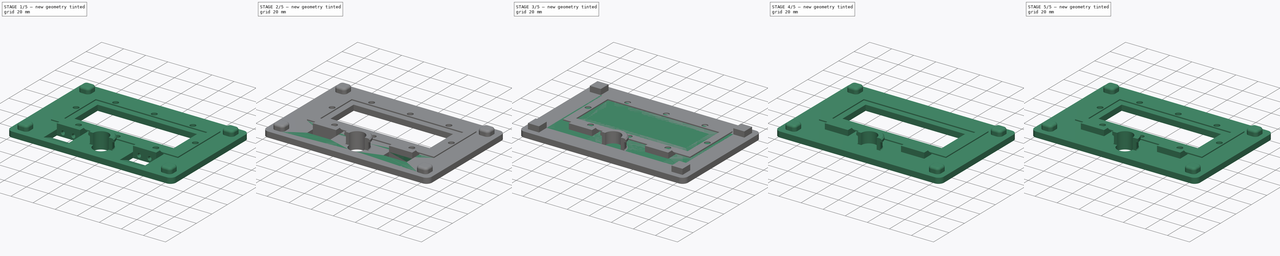
[diagram: build sequence overview — one tinted view per stage of 5, left to right]
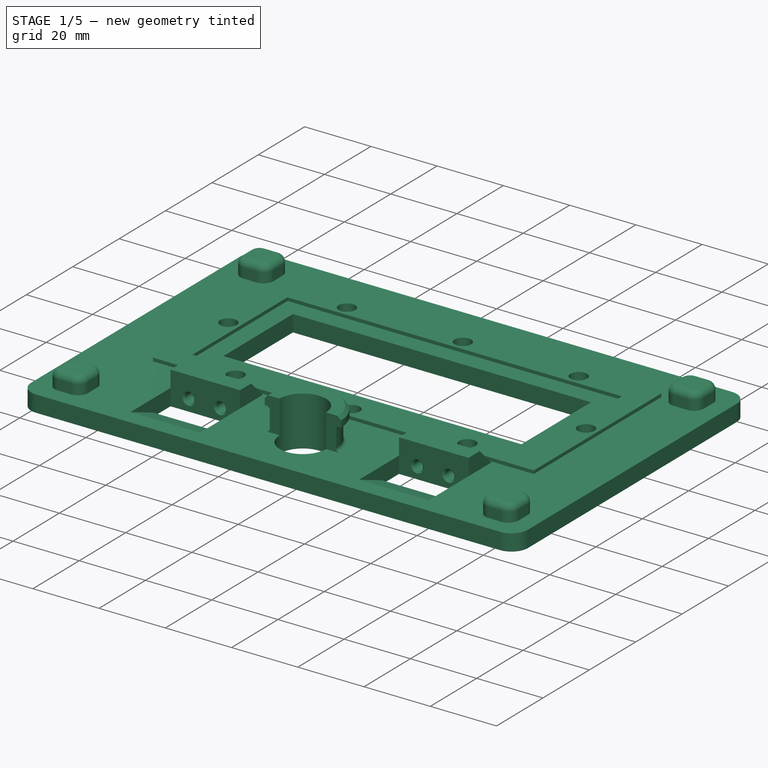
[diagram: stage 1 of 5 — iso view after this stage's code; geometry added in this stage tinted green]
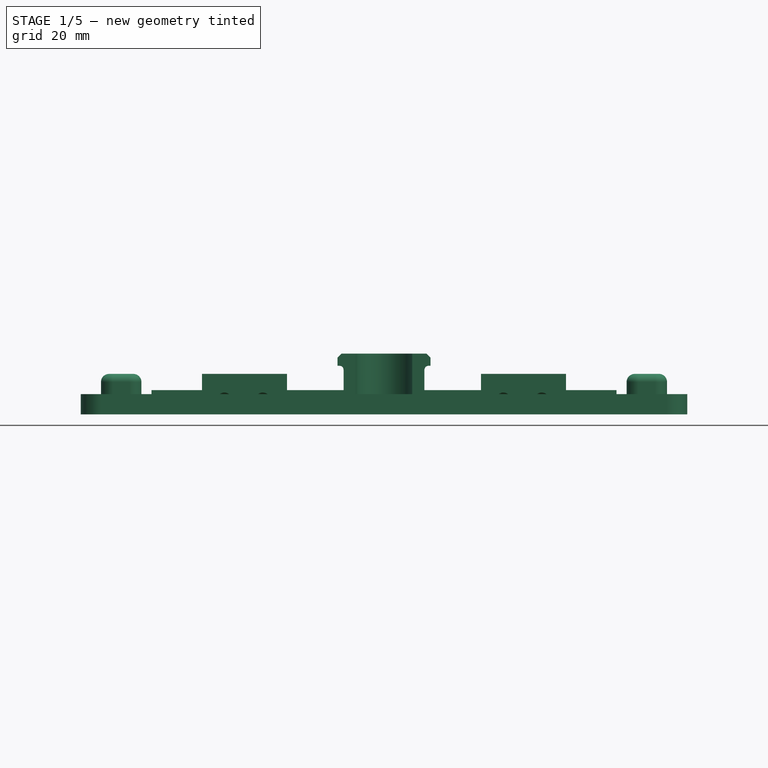
[diagram: stage 1 of 5 — front view after this stage's code; geometry added in this stage tinted green]
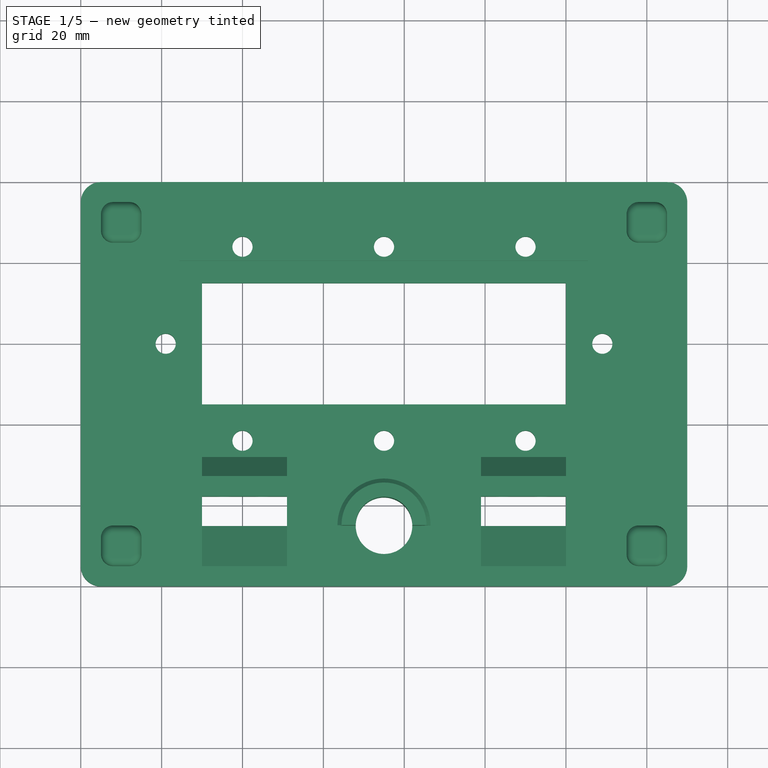
[diagram: stage 1 of 5 — top view after this stage's code; geometry added in this stage tinted green]
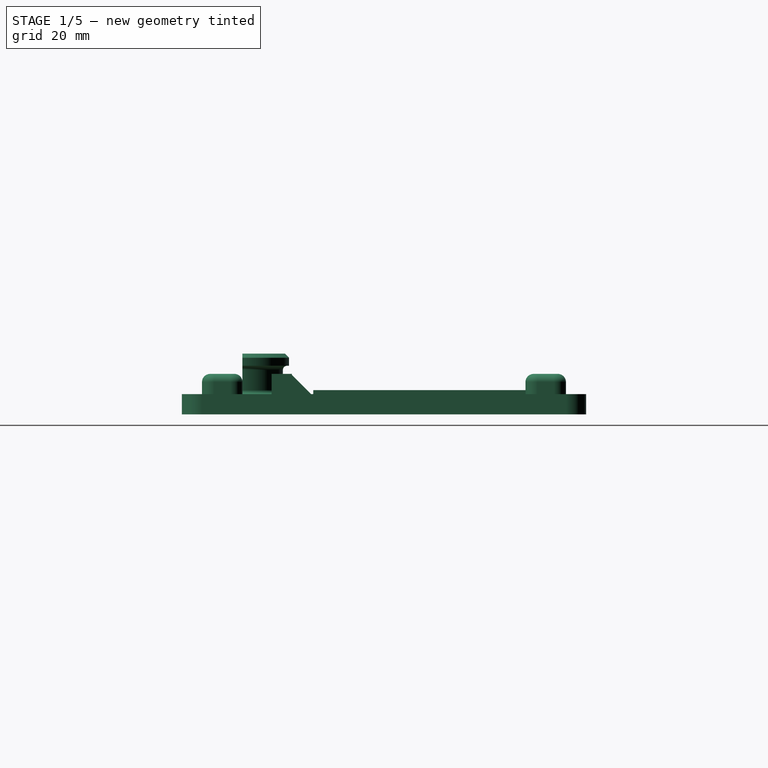
[diagram: stage 1 of 5 — right view after this stage's code; geometry added in this stage tinted green]
FCSTD DOCUMENT  (FreeCAD 0.16R6655 (Git))
Label: taz_x_axis_external_harness
License: CC-BY 3.0
LicenseURL: http://creativecommons.org/licenses/by/3.0/
objects: Sketcher::SketchObject×11, PartDesign::Pad×6, PartDesign::Pocket×5, PartDesign::Fillet×4, PartDesign::Chamfer×3, Part::Feature×2, Part::Chamfer×1
note: 43 computed .brp shape members not serialized (recipe doc carries the construction recipe); baked Part::Feature solids carry a one-line shape summary decoded from their .brp

FEATURE [Part::Feature] Pad004002001  label="Pad004003"
  shape: bbox 150 x 100 x 15.01 mm, 128 faces (baked)
FEATURE [Part::Chamfer] Chamfer001
  Base = -> Pad004002001
  Edges = 2 edges: [Edge48 r1=10 r2=4,Edge66 r1=10 r2=4]
FEATURE [Sketcher::SketchObject] Sketch010
  ExternalGeometry = -> [Chamfer001]
  Placement = pos=(0,22.2,0) rot=(1,0,0;1.5708rad)
  Support = -> Chamfer001 [Face64]
  sketch-geometry (4):
    g0: Circle CenterX=104.5 CenterY=3.5 CenterZ=0 NormalX=0 NormalY=0 NormalZ=1 Radius=1.4
    g1: Circle CenterX=114 CenterY=3.5 CenterZ=0 NormalX=0 NormalY=0 NormalZ=1 Radius=1.4
    g2: Circle CenterX=35.5 CenterY=3.5 CenterZ=0 NormalX=0 NormalY=0 NormalZ=1 Radius=1.4
    g3: Circle CenterX=45 CenterY=3.5 CenterZ=0 NormalX=0 NormalY=0 NormalZ=1 Radius=1.4
  constraints (12):
    c: Radius(g0) = 1.4
    c: Equal(g0,g1)
    c: Equal(g0,g2)
    c: Equal(g0,g3)
    c: DistanceY(g3,g2) = 0
    c: DistanceY(g0,g1) = 0
    c: DistanceY(g0,g3) = 0
    c: DistanceY(g-1,g2) = 3.5
    c: DistanceX(g2,g3) = 9.5
    c: DistanceX(g0,g1) = 9.5
    c: DistanceX(g-3,g2) = 5.5
    c: DistanceX(g-4,g0) = 5.5
FEATURE [PartDesign::Pocket] Pocket004
  Length = 3.7
  Sketch = -> Sketch010
  Type = 0
FEATURE [PartDesign::Chamfer] Chamfer002
  Base = -> Pocket004 [Edge6,Edge62]
  Size = 4.8
FEATURE [PartDesign::Chamfer] Chamfer003
  Base = -> Chamfer002 [Edge319,Edge320,Edge211,Edge212]
  Size = 0.5
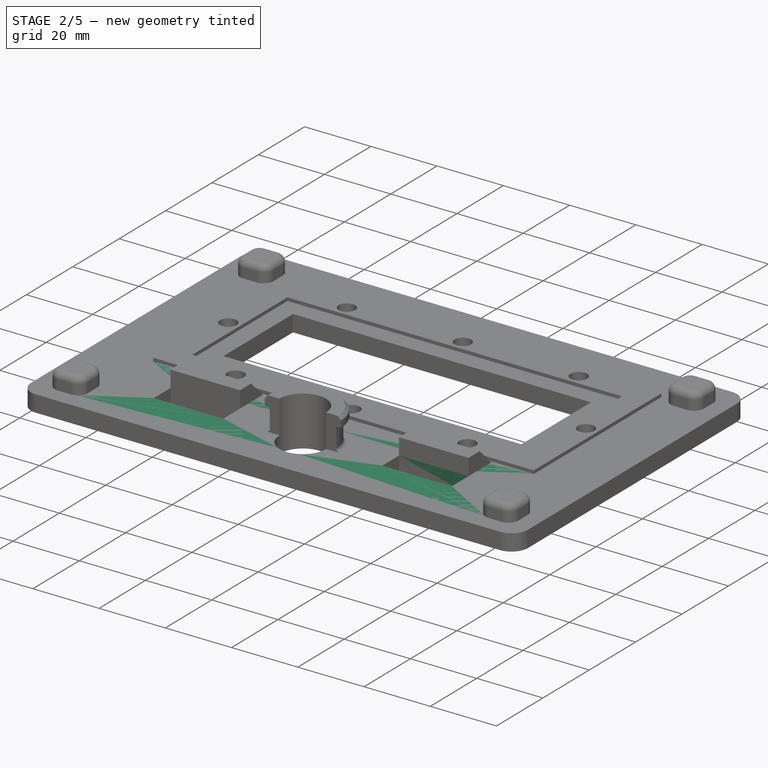
[diagram: stage 2 of 5 — iso view after this stage's code; geometry added in this stage tinted green]
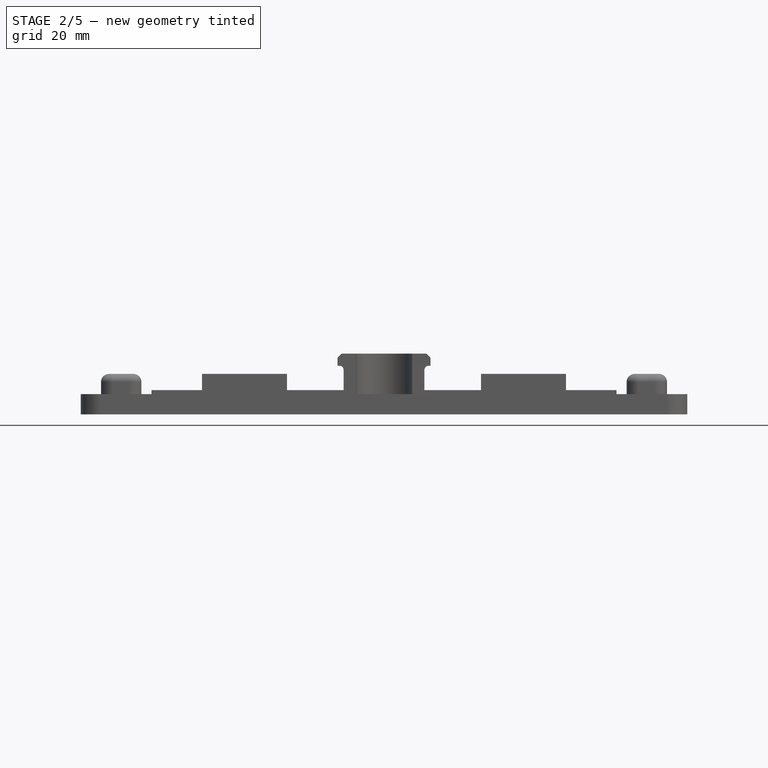
[diagram: stage 2 of 5 — front view after this stage's code; geometry added in this stage tinted green]
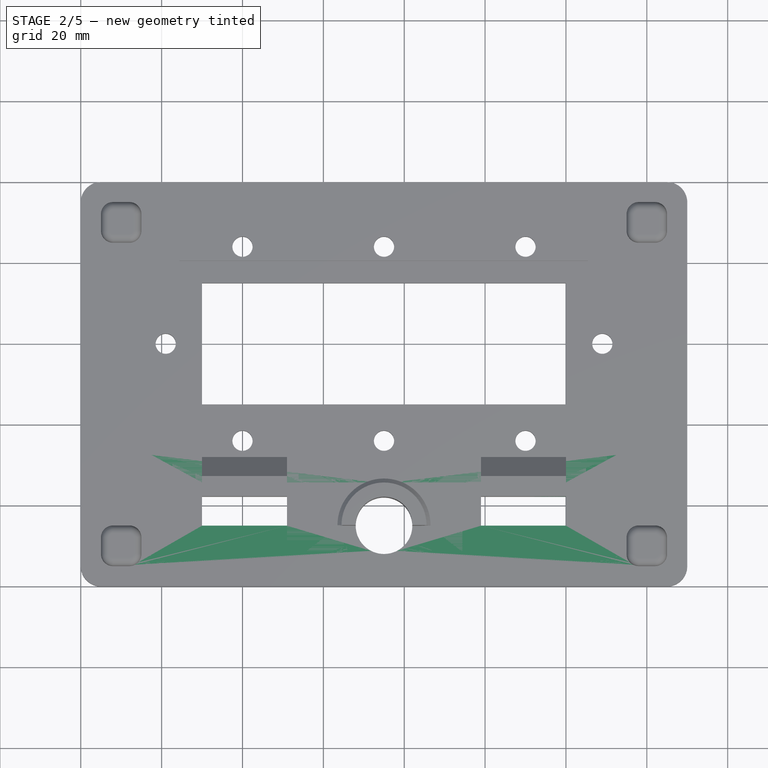
[diagram: stage 2 of 5 — top view after this stage's code; geometry added in this stage tinted green]
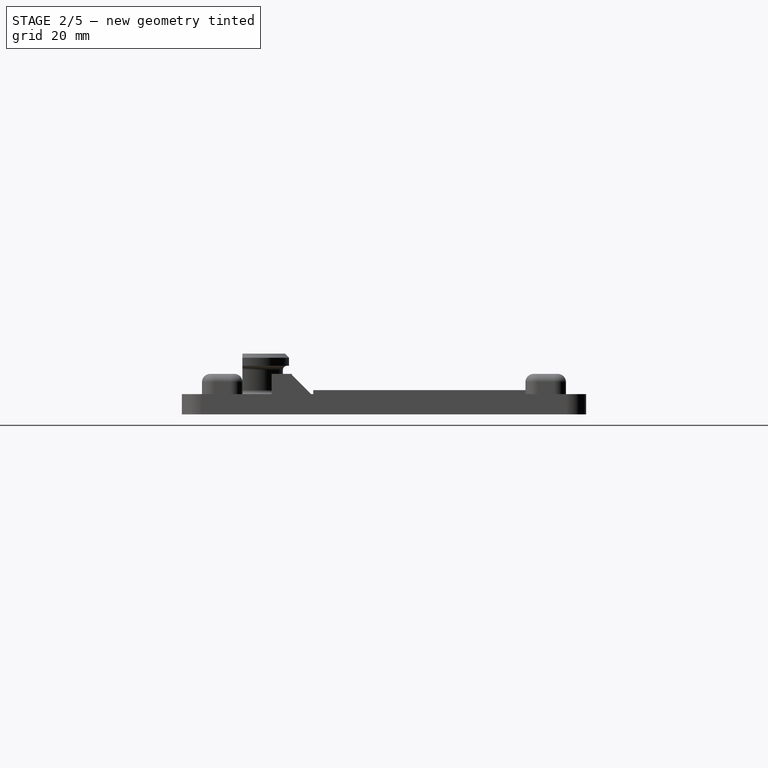
[diagram: stage 2 of 5 — right view after this stage's code; geometry added in this stage tinted green]
FEATURE [Part::Feature] Pad004001  label="Pad005"
  shape: bbox 150 x 100 x 15 mm, 109 faces (baked)
FEATURE [PartDesign::Chamfer] Chamfer
  Base = -> Pad004001 [Edge267]
  Size = 1
FEATURE [PartDesign::Fillet] Fillet003
  Base = -> Chamfer [Edge14,Edge16]
  Radius = 1
FEATURE [Sketcher::SketchObject] Sketch008
  Placement = pos=(0,0,5) rot=(0,0,1;0rad)
  Support = -> Fillet003 [Face13]
  sketch-geometry (8):
    g0: LineSegment StartX=30 StartY=15 StartZ=0 EndX=51 EndY=15 EndZ=0
    g1: LineSegment StartX=51 StartY=15 StartZ=0 EndX=51 EndY=22.2 EndZ=0
    g2: LineSegment StartX=51 StartY=22.2 StartZ=0 EndX=30 EndY=22.2 EndZ=0
    g3: LineSegment StartX=30 StartY=22.2 StartZ=0 EndX=30 EndY=15 EndZ=0
    g4: LineSegment StartX=99 StartY=15 StartZ=0 EndX=120 EndY=15 EndZ=0
    g5: LineSegment StartX=120 StartY=15 StartZ=0 EndX=120 EndY=22.2 EndZ=0
    g6: LineSegment StartX=120 StartY=22.2 StartZ=0 EndX=99 EndY=22.2 EndZ=0
    g7: LineSegment StartX=99 StartY=22.2 StartZ=0 EndX=99 EndY=15 EndZ=0
  constraints (20):
    c: Coincident(g0,g1)
    c: Coincident(g1,g2)
    c: Coincident(g2,g3)
    c: Coincident(g3,g0)
    c: Horizontal(g0)
    c: Horizontal(g2)
    c: Vertical(g1)
    c: Vertical(g3)
    c: Coincident(g4,g5)
    c: Coincident(g5,g6)
    c: Coincident(g6,g7)
    c: Coincident(g7,g4)
    c: Horizontal(g4)
    c: Horizontal(g6)
    c: Vertical(g5)
    c: Vertical(g7)
    c: Equal(g0,g4)
    c: Equal(g1,g7)
    c: DistanceX(g0,g0) = 21
    c: DistanceY(g3,g3) = 7.2
FEATURE [PartDesign::Pocket] Pocket003
  Length = 5
  Sketch = -> Sketch008
  Type = 0
FEATURE [Sketcher::SketchObject] Sketch009
  ExternalGeometry = -> [Pocket003]
  Placement = pos=(0,0,5) rot=(0,0,1;0rad)
  Support = -> Pocket003 [Face13]
  sketch-geometry (8):
    g0: LineSegment StartX=30 StartY=22.2 StartZ=0 EndX=51 EndY=22.2 EndZ=0
    g1: LineSegment StartX=51 StartY=22.2 StartZ=0 EndX=51 EndY=25.7 EndZ=0
    g2: LineSegment StartX=51 StartY=25.7 StartZ=0 EndX=30 EndY=25.7 EndZ=0
    g3: LineSegment StartX=30 StartY=25.7 StartZ=0 EndX=30 EndY=22.2 EndZ=0
    g4: LineSegment StartX=99 StartY=22.2 StartZ=0 EndX=120 EndY=22.2 EndZ=0
    g5: LineSegment StartX=120 StartY=22.2 StartZ=0 EndX=120 EndY=25.7 EndZ=0
    g6: LineSegment StartX=120 StartY=25.7 StartZ=0 EndX=99 EndY=25.7 EndZ=0
    g7: LineSegment StartX=99 StartY=25.7 StartZ=0 EndX=99 EndY=22.2 EndZ=0
  constraints (22):
    c: Coincident(g0,g1)
    c: Coincident(g1,g2)
    c: Coincident(g2,g3)
    c: Coincident(g3,g0)
    c: Horizontal(g0)
    c: Horizontal(g2)
    c: Vertical(g1)
    c: Vertical(g3)
    c: Coincident(g4,g5)
    c: Coincident(g5,g6)
    c: Coincident(g6,g7)
    c: Coincident(g7,g4)
    c: Horizontal(g4)
    c: Horizontal(g6)
    c: Vertical(g5)
    c: Vertical(g7)
    c: Coincident(g0,g-3)
    c: Coincident(g0,g-3)
    c: Coincident(g4,g-4)
    c: Coincident(g4,g-4)
    c: Equal(g1,g7)
    c: DistanceY(g3,g3) = 3.5
FEATURE [PartDesign::Pad] Pad004002
  Length = 5
  Length2 = 100
  Sketch = -> Sketch009
  Type = 0
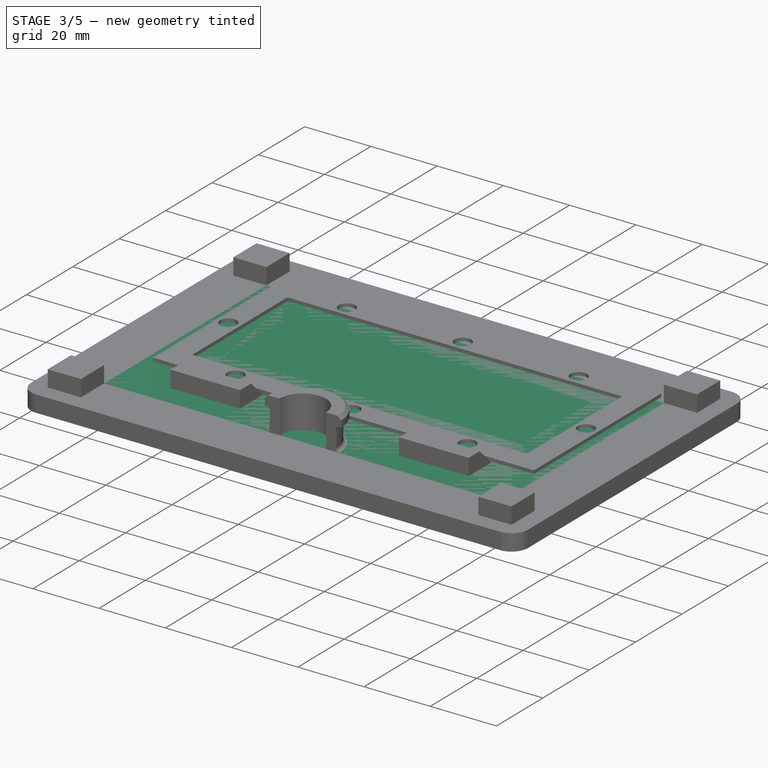
[diagram: stage 3 of 5 — iso view after this stage's code; geometry added in this stage tinted green]
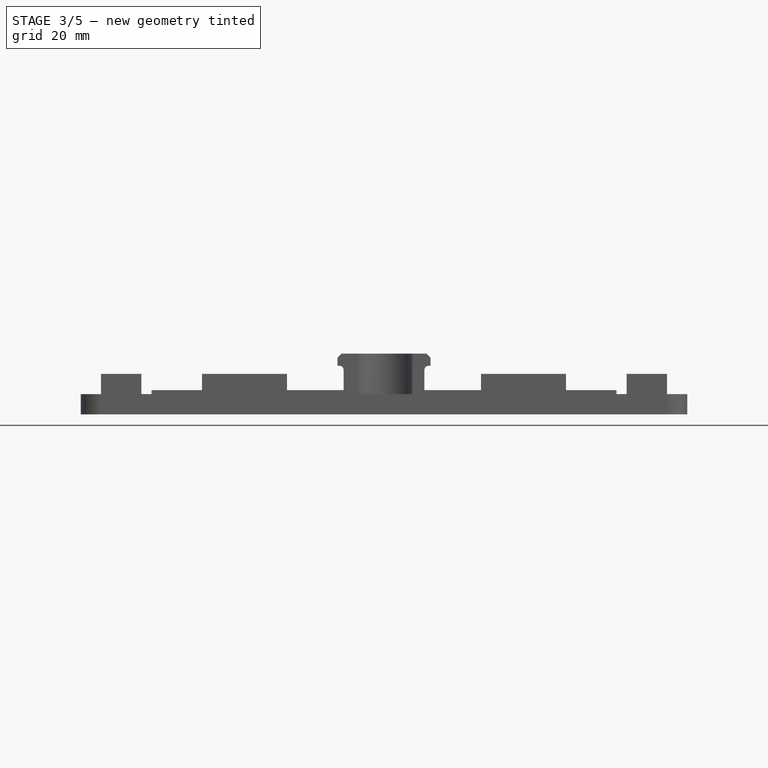
[diagram: stage 3 of 5 — front view after this stage's code; geometry added in this stage tinted green]
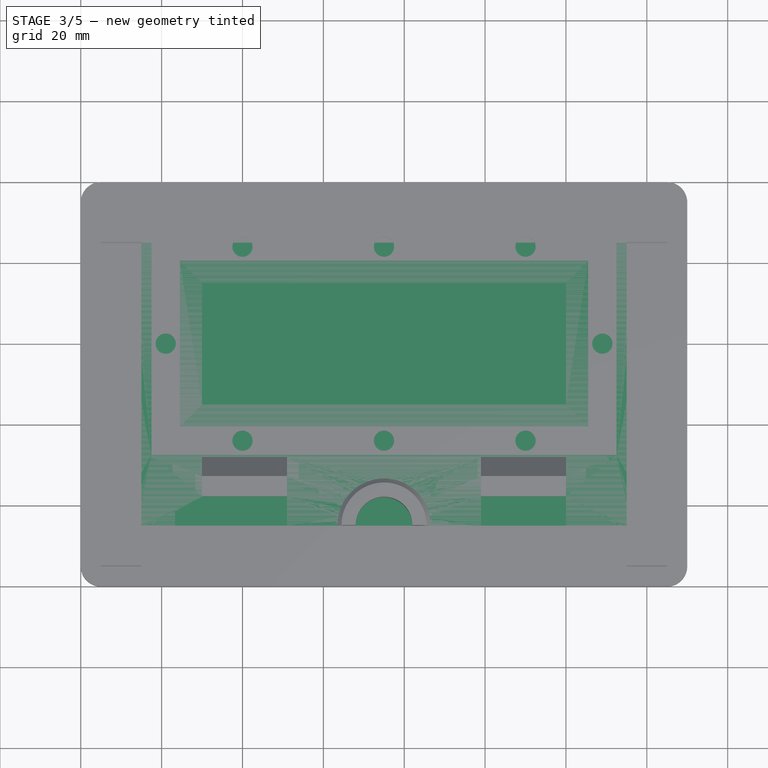
[diagram: stage 3 of 5 — top view after this stage's code; geometry added in this stage tinted green]
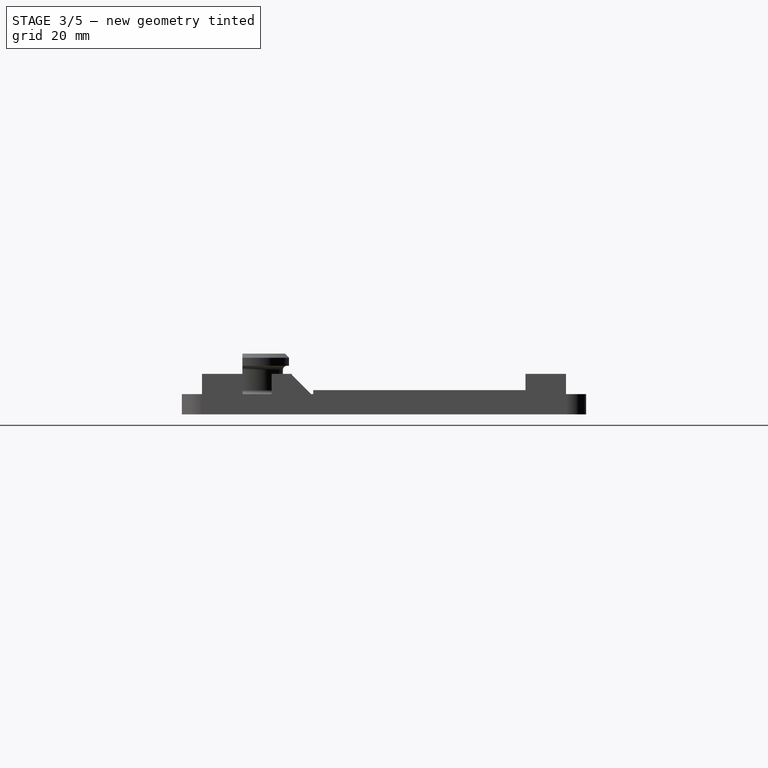
[diagram: stage 3 of 5 — right view after this stage's code; geometry added in this stage tinted green]
FEATURE [Sketcher::SketchObject] Sketch
  sketch-geometry (4):
    g0: LineSegment StartX=0 StartY=0 StartZ=0 EndX=150 EndY=0 EndZ=0
    g1: LineSegment StartX=150 StartY=0 StartZ=0 EndX=150 EndY=100 EndZ=0
    g2: LineSegment StartX=150 StartY=100 StartZ=0 EndX=0 EndY=100 EndZ=0
    g3: LineSegment StartX=0 StartY=100 StartZ=0 EndX=0 EndY=0 EndZ=0
  constraints (11):
    c: Coincident(g0,g1)
    c: Coincident(g1,g2)
    c: Coincident(g2,g3)
    c: Coincident(g3,g0)
    c: Horizontal(g0)
    c: Horizontal(g2)
    c: Vertical(g1)
    c: Vertical(g3)
    c: Coincident(g0,g-1)
    c: DistanceY(g3) = -100
    c: DistanceX(g0) = 150
FEATURE [PartDesign::Pad] Pad
  Length = 5
  Length2 = 100
  Sketch = -> Sketch
  Type = 0
FEATURE [PartDesign::Fillet] Fillet
  Base = -> Pad [Edge1,Edge2,Edge5,Edge8]
  Radius = 5
FEATURE [Sketcher::SketchObject] Sketch001
  Placement = pos=(0,0,5) rot=(0,0,1;0rad)
  Support = -> Fillet [Face5]
  sketch-geometry (16):
    g0: LineSegment StartX=5 StartY=5 StartZ=0 EndX=15 EndY=5 EndZ=0
    g1: LineSegment StartX=15 StartY=5 StartZ=0 EndX=15 EndY=15 EndZ=0
    g2: LineSegment StartX=15 StartY=15 StartZ=0 EndX=5 EndY=15 EndZ=0
    g3: LineSegment StartX=5 StartY=15 StartZ=0 EndX=5 EndY=5 EndZ=0
    g4: LineSegment StartX=145 StartY=95 StartZ=0 EndX=135 EndY=95 EndZ=0
    g5: LineSegment StartX=135 StartY=95 StartZ=0 EndX=135 EndY=85 EndZ=0
    g6: LineSegment StartX=135 StartY=85 StartZ=0 EndX=145 EndY=85 EndZ=0
    g7: LineSegment StartX=145 StartY=85 StartZ=0 EndX=145 EndY=95 EndZ=0
    g8: LineSegment StartX=5 StartY=95 StartZ=0 EndX=15 EndY=95 EndZ=0
    g9: LineSegment StartX=15 StartY=95 StartZ=0 EndX=15 EndY=85 EndZ=0
    g10: LineSegment StartX=15 StartY=85 StartZ=0 EndX=5 EndY=85 EndZ=0
    g11: LineSegment StartX=5 StartY=85 StartZ=0 EndX=5 EndY=95 EndZ=0
    g12: LineSegment StartX=145 StartY=5 StartZ=0 EndX=135 EndY=5 EndZ=0
    g13: LineSegment StartX=135 StartY=5 StartZ=0 EndX=135 EndY=15 EndZ=0
    g14: LineSegment StartX=135 StartY=15 StartZ=0 EndX=145 EndY=15 EndZ=0
    g15: LineSegment StartX=145 StartY=15 StartZ=0 EndX=145 EndY=5 EndZ=0
  constraints (32):
    c: Coincident(g0,g1)
    c: Coincident(g1,g2)
    c: Coincident(g2,g3)
    c: Coincident(g3,g0)
    c: Horizontal(g0)
    c: Horizontal(g2)
    c: Vertical(g1)
    c: Vertical(g3)
    c: Coincident(g4,g5)
    c: Coincident(g5,g6)
    c: Coincident(g6,g7)
    c: Coincident(g7,g4)
    c: Horizontal(g4)
    c: Horizontal(g6)
    c: Vertical(g5)
    c: Vertical(g7)
    c: Coincident(g8,g9)
    c: Coincident(g9,g10)
    c: Coincident(g10,g11)
    c: Coincident(g11,g8)
    c: Horizontal(g8)
    c: Horizontal(g10)
    c: Vertical(g9)
    c: Vertical(g11)
    c: Coincident(g12,g13)
    c: Coincident(g13,g14)
    c: Coincident(g14,g15)
    c: Coincident(g15,g12)
    c: Horizontal(g12)
    c: Horizontal(g14)
    c: Vertical(g13)
    c: Vertical(g15)
FEATURE [PartDesign::Pad] Pad001
  Length = 5
  Length2 = 100
  Sketch = -> Sketch001
  Type = 0
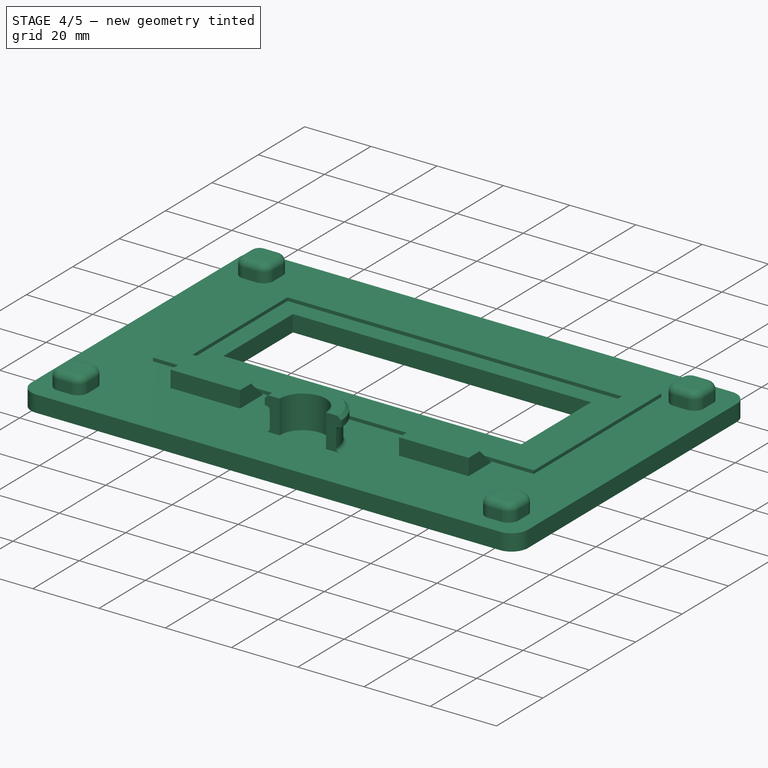
[diagram: stage 4 of 5 — iso view after this stage's code; geometry added in this stage tinted green]
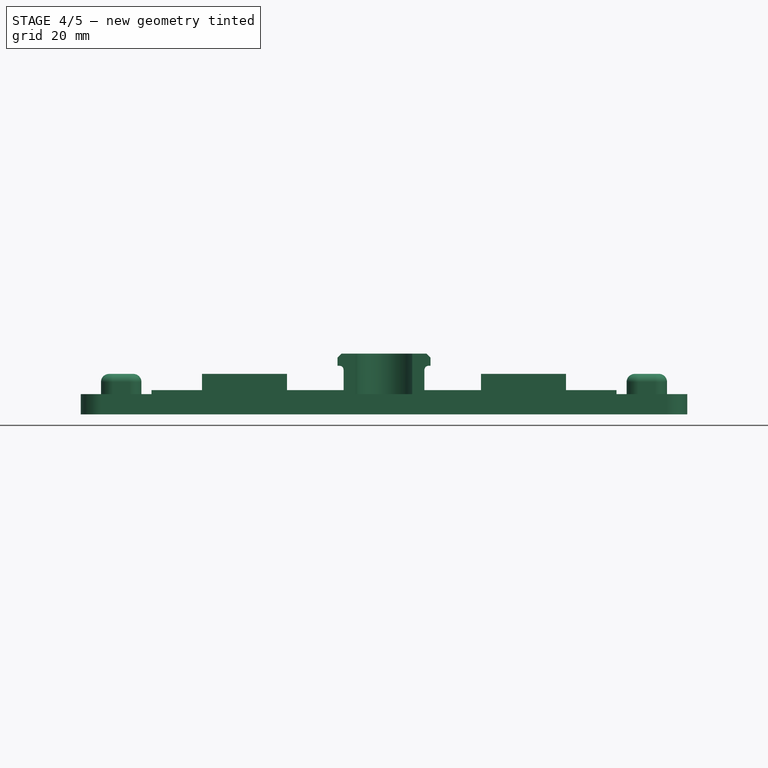
[diagram: stage 4 of 5 — front view after this stage's code; geometry added in this stage tinted green]
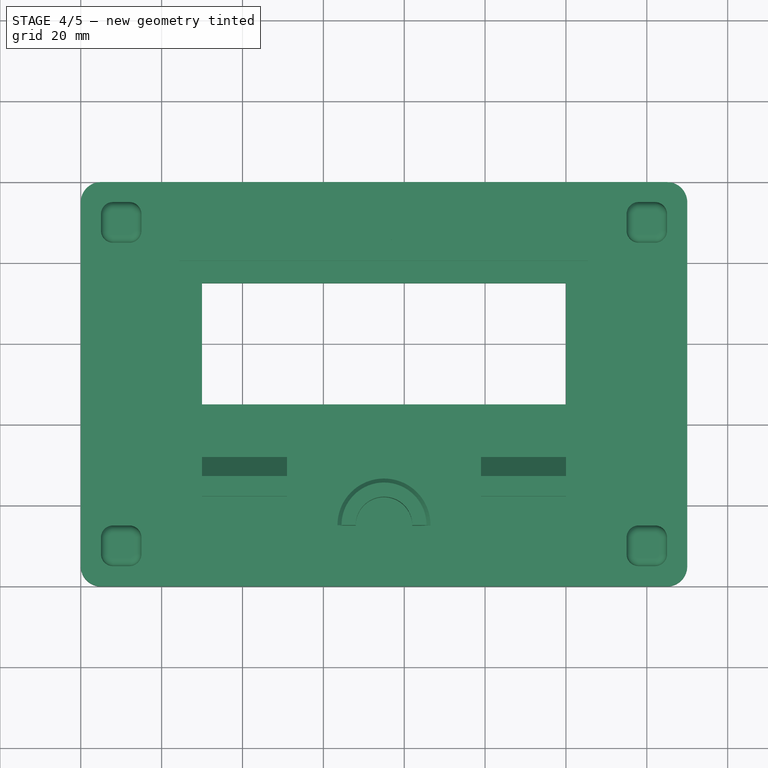
[diagram: stage 4 of 5 — top view after this stage's code; geometry added in this stage tinted green]
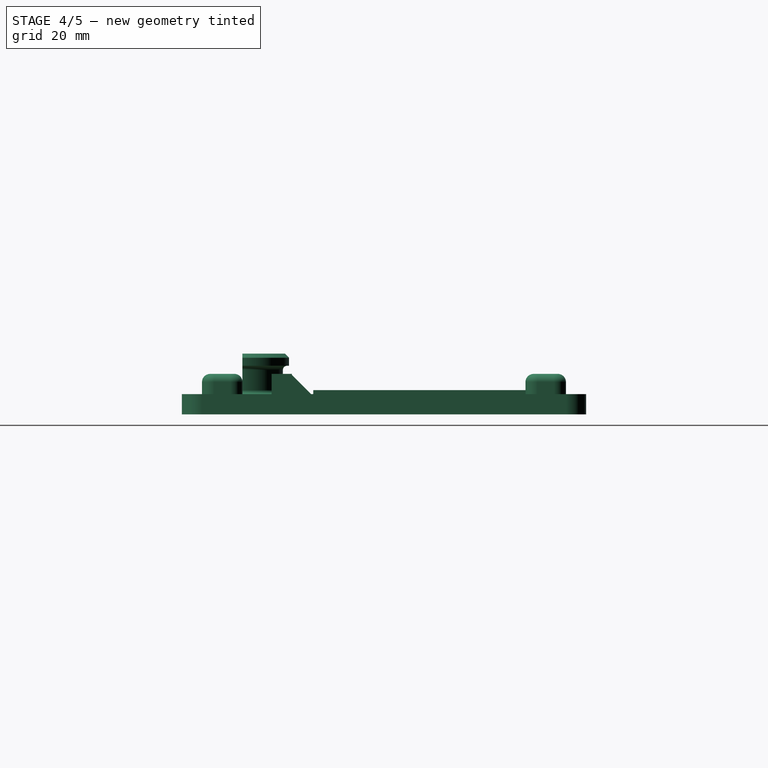
[diagram: stage 4 of 5 — right view after this stage's code; geometry added in this stage tinted green]
FEATURE [PartDesign::Fillet] Fillet001
  Base = -> Pad001 [Edge67,Edge70,Edge65,Edge68,Edge41,Edge43,Edge47,Edge45,Edge51,Edge49,Edge55,Edge60,Edge57,Edge59,Edge62,Edge53]
  Radius = 3
FEATURE [PartDesign::Fillet] Fillet002
  Base = -> Fillet001 [Edge113,Edge88,Edge99,Edge43]
  Radius = 2
FEATURE [Sketcher::SketchObject] Sketch002
  Placement = pos=(0,0,0) rot=(1,0,0;3.14159rad)
  Support = -> Fillet002 [Face51]
  sketch-geometry (8):
    g0: LineSegment [constr] StartX=25 StartY=-80 StartZ=0 EndX=125 EndY=-80 EndZ=0
    g1: LineSegment [constr] StartX=125 StartY=-80 StartZ=0 EndX=125 EndY=-40 EndZ=0
    g2: LineSegment [constr] StartX=125 StartY=-40 StartZ=0 EndX=25 EndY=-40 EndZ=0
    g3: LineSegment [constr] StartX=25 StartY=-40 StartZ=0 EndX=25 EndY=-80 EndZ=0
    g4: LineSegment StartX=30 StartY=-75 StartZ=0 EndX=120 EndY=-75 EndZ=0
    g5: LineSegment StartX=120 StartY=-75 StartZ=0 EndX=120 EndY=-45 EndZ=0
    g6: LineSegment StartX=120 StartY=-45 StartZ=0 EndX=30 EndY=-45 EndZ=0
    g7: LineSegment StartX=30 StartY=-45 StartZ=0 EndX=30 EndY=-75 EndZ=0
  constraints (19):
    c: Coincident(g0,g1)
    c: Coincident(g1,g2)
    c: Coincident(g2,g3)
    c: Coincident(g3,g0)
    c: Horizontal(g0)
    c: Horizontal(g2)
    c: Vertical(g1)
    c: Vertical(g3)
    c: DistanceX(g0,g0) = 100
    c: DistanceY(g3,g3) = 40
    c: DistanceX(g-1,g2) = 25
    c: Coincident(g4,g5)
    c: Coincident(g5,g6)
    c: Coincident(g6,g7)
    c: Coincident(g7,g4)
    c: Horizontal(g4)
    c: Horizontal(g6)
    c: Vertical(g5)
    c: Vertical(g7)
FEATURE [PartDesign::Pocket] Pocket
  Length = 5
  Sketch = -> Sketch002
  Type = 0
FEATURE [Sketcher::SketchObject] Sketch003
  Placement = pos=(0,0,5) rot=(0,0,1;0rad)
  Support = -> Pocket [Face4]
  sketch-geometry (8):
    g0: LineSegment StartX=17.5 StartY=87.5 StartZ=0 EndX=132.5 EndY=87.5 EndZ=0
    g1: LineSegment StartX=132.5 StartY=87.5 StartZ=0 EndX=132.5 EndY=32.5 EndZ=0
    g2: LineSegment StartX=132.5 StartY=32.5 StartZ=0 EndX=17.5 EndY=32.5 EndZ=0
    g3: LineSegment StartX=17.5 StartY=32.5 StartZ=0 EndX=17.5 EndY=87.5 EndZ=0
    g4: LineSegment StartX=24.5 StartY=80.5 StartZ=0 EndX=125.5 EndY=80.5 EndZ=0
    g5: LineSegment StartX=125.5 StartY=80.5 StartZ=0 EndX=125.5 EndY=39.5 EndZ=0
    g6: LineSegment StartX=125.5 StartY=39.5 StartZ=0 EndX=24.5 EndY=39.5 EndZ=0
    g7: LineSegment StartX=24.5 StartY=39.5 StartZ=0 EndX=24.5 EndY=80.5 EndZ=0
  constraints (24):
    c: Coincident(g0,g1)
    c: Coincident(g1,g2)
    c: Coincident(g2,g3)
    c: Coincident(g3,g0)
    c: Horizontal(g0)
    c: Horizontal(g2)
    c: Vertical(g1)
    c: Vertical(g3)
    c: Coincident(g4,g5)
    c: Coincident(g5,g6)
    c: Coincident(g6,g7)
    c: Coincident(g7,g4)
    c: Horizontal(g4)
    c: Horizontal(g6)
    c: Vertical(g5)
    c: Vertical(g7)
    c: DistanceX(g6,g6) = 101
    c: DistanceY(g5,g5) = 41
    c: DistanceX(g-1,g6) = 24.5
    c: DistanceY(g-1,g6) = 39.5
    c: DistanceY(g2,g6) = 7
    c: DistanceX(g2,g6) = 7
    c: DistanceY(g4,g0) = 7
    c: DistanceX(g4,g0) = 7
FEATURE [PartDesign::Pad] Pad002
  Length = 1
  Length2 = 100
  Sketch = -> Sketch003
  Type = 0
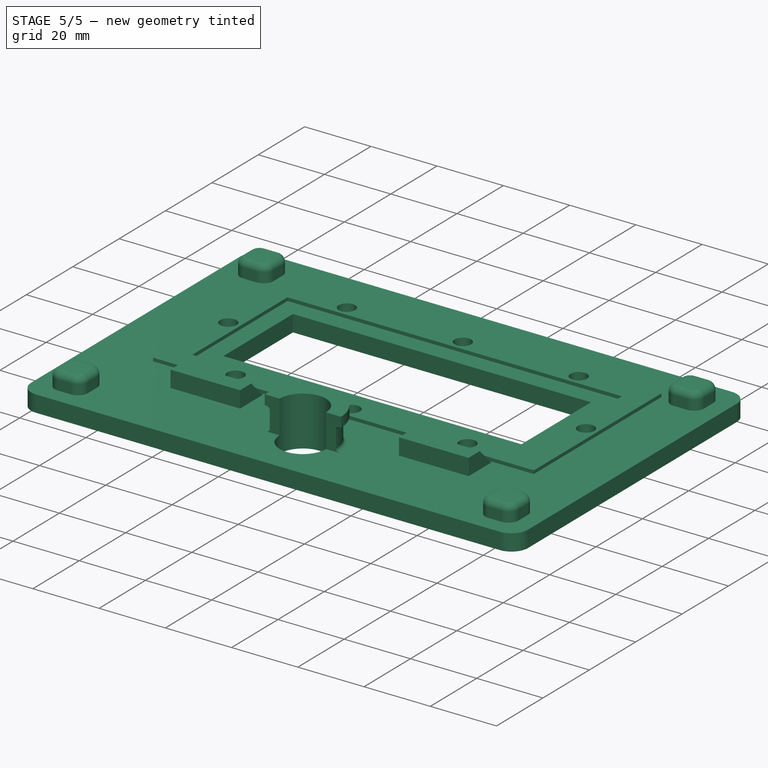
[diagram: stage 5 of 5 — iso view after this stage's code; geometry added in this stage tinted green]
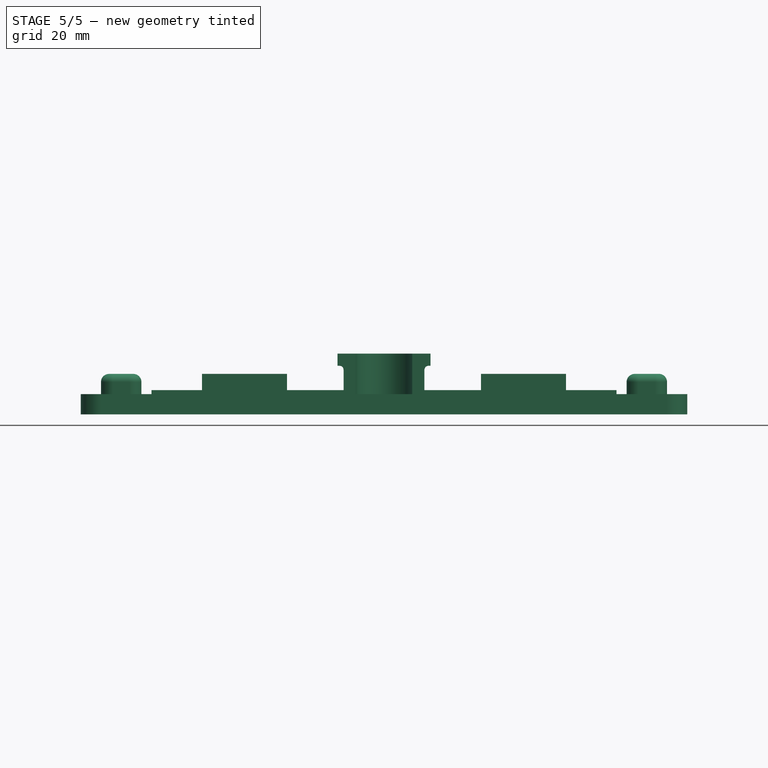
[diagram: stage 5 of 5 — front view after this stage's code; geometry added in this stage tinted green]
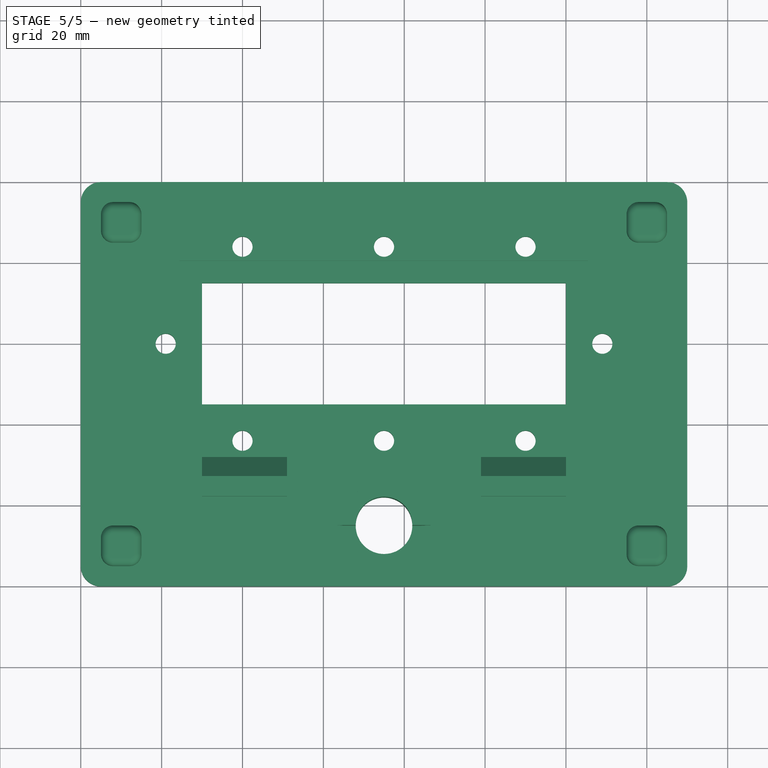
[diagram: stage 5 of 5 — top view after this stage's code; geometry added in this stage tinted green]
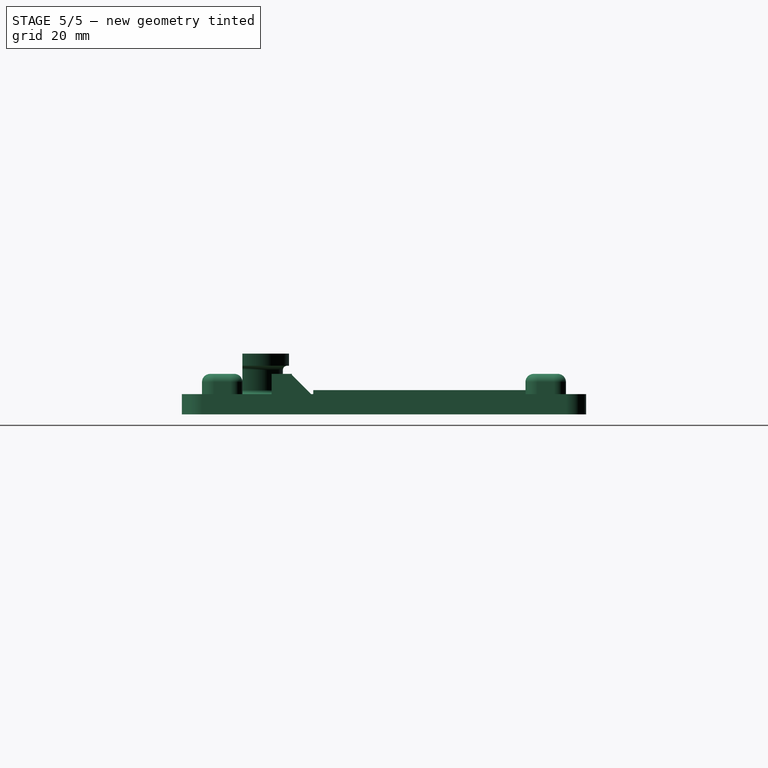
[diagram: stage 5 of 5 — right view after this stage's code; geometry added in this stage tinted green]
FEATURE [Sketcher::SketchObject] Sketch004
  ExternalGeometry = -> [Pad002]
  Placement = pos=(0,0,6) rot=(0,0,1;0rad)
  Support = -> Pad002 [Face56]
  sketch-geometry (9):
    g0: Circle CenterX=40 CenterY=84 CenterZ=0 NormalX=0 NormalY=0 NormalZ=1 Radius=2.5
    g1: Circle CenterX=75 CenterY=84 CenterZ=0 NormalX=0 NormalY=0 NormalZ=1 Radius=2.5
    g2: Circle CenterX=110 CenterY=84 CenterZ=0 NormalX=0 NormalY=0 NormalZ=1 Radius=2.5
    g3: Circle CenterX=129 CenterY=60 CenterZ=0 NormalX=0 NormalY=0 NormalZ=1 Radius=2.5
    g4: Circle CenterX=110 CenterY=36 CenterZ=0 NormalX=0 NormalY=0 NormalZ=1 Radius=2.5
    g5: Circle CenterX=75 CenterY=36 CenterZ=0 NormalX=0 NormalY=0 NormalZ=1 Radius=2.5
    g6: Circle CenterX=40 CenterY=36 CenterZ=0 NormalX=0 NormalY=0 NormalZ=1 Radius=2.5
    g7: Circle CenterX=21 CenterY=60 CenterZ=0 NormalX=0 NormalY=0 NormalZ=1 Radius=2.5
    g8: LineSegment [constr] StartX=17.5 StartY=87.5 StartZ=0 EndX=75 EndY=87.5 EndZ=0
  constraints (27):
    c: Radius(g0) = 2.5
    c: Equal(g0,g1)
    c: Equal(g0,g2)
    c: Equal(g0,g3)
    c: Equal(g0,g5)
    c: Equal(g0,g6)
    c: Equal(g0,g7)
    c: Equal(g0,g4)
    c: DistanceY(g0,g1) = 0
    c: DistanceY(g2,g1) = 0
    c: DistanceY(g5,g6) = 0
    c: DistanceY(g5,g4) = 0
    c: DistanceY(g7,g3) = 0
    c: DistanceX(g0,g6) = 0
    c: DistanceX(g1,g5) = 0
    c: DistanceX(g2,g4) = 0
    c: Horizontal(g8)
    c: DistanceX(g8,g8) = 57.5
    c: Coincident(g8,g-4)
    c: DistanceX(g1,g8) = 0
    c: DistanceX(g1,g2) = 35
    c: DistanceX(g0,g1) = 35
    c: DistanceY(g0,g8) = 3.5
    c: DistanceX(g8,g7) = 3.5
    c: DistanceY(g-3,g6) = 3.5
    c: DistanceX(g3,g-4) = 3.5
    c: DistanceY(g-3,g7) = 27.5
FEATURE [PartDesign::Pocket] Pocket001
  Length = 2
  Sketch = -> Sketch004
  Type = 1
FEATURE [Sketcher::SketchObject] Sketch005
  Placement = pos=(0,0,5) rot=(0,0,1;0rad)
  Support = -> Pocket001 [Face4]
  sketch-geometry (1):
    g0: Circle CenterX=75 CenterY=15 CenterZ=0 NormalX=0 NormalY=0 NormalZ=1 Radius=7
  constraints (1):
    c: Radius(g0) = 7
FEATURE [PartDesign::Pocket] Pocket002
  Length = 5
  Sketch = -> Sketch005
  Type = 0
FEATURE [Sketcher::SketchObject] Sketch006
  ExternalGeometry = -> [Pocket002]
  Placement = pos=(0,0,5) rot=(0,0,1;0rad)
  Support = -> Pocket002 [Face4]
  sketch-geometry (4):
    g0: ArcOfCircle CenterX=75 CenterY=15 CenterZ=0 NormalX=0 NormalY=0 NormalZ=1 Radius=10 StartAngle=0 EndAngle=3.14196
    g1: ArcOfCircle CenterX=75 CenterY=15 CenterZ=0 NormalX=0 NormalY=0 NormalZ=1 Radius=7 StartAngle=6.28065 EndAngle=9.4246
    g2: LineSegment StartX=65 StartY=14.9963 StartZ=0 EndX=68 EndY=15.0012 EndZ=0
    g3: LineSegment StartX=82 StartY=14.9823 StartZ=0 EndX=85 EndY=15 EndZ=0
  constraints (9):
    c: PointOnObject(g1,g-3)
    c: PointOnObject(g1,g-3)
    c: Coincident(g0,g1)
    c: Coincident(g0,g-3)
    c: Coincident(g0,g3)
    c: Coincident(g1,g3)
    c: Coincident(g1,g2)
    c: Coincident(g0,g2)
    c: Radius(g0) = 10
FEATURE [PartDesign::Pad] Pad003
  Length = 10
  Length2 = 100
  Sketch = -> Sketch006
  Type = 0
FEATURE [Sketcher::SketchObject] Sketch007
  ExternalGeometry = -> [Pad003]
  Placement = pos=(0,0,15) rot=(0,0,1;0rad)
  Support = -> Pad003 [Face69]
  sketch-geometry (4):
    g0: ArcOfCircle CenterX=75 CenterY=15 CenterZ=0 NormalX=0 NormalY=0 NormalZ=1 Radius=11.5 StartAngle=6.28165 EndAngle=9.42478
    g1: ArcOfCircle CenterX=75 CenterY=15 CenterZ=0 NormalX=0 NormalY=0 NormalZ=1 Radius=7 StartAngle=6.28065 EndAngle=9.4246
    g2: LineSegment StartX=63.5 StartY=15 StartZ=0 EndX=68 EndY=15.0012 EndZ=0
    g3: LineSegment StartX=82 StartY=14.9823 StartZ=0 EndX=86.5 EndY=14.9823 EndZ=0
  constraints (10):
    c: Coincident(g0,g1)
    c: Coincident(g0,g-3)
    c: Radius(g0) = 11.5
    c: Horizontal(g3)
    c: Coincident(g1,g3)
    c: Coincident(g1,g-3)
    c: Coincident(g1,g2)
    c: Coincident(g1,g-3)
    c: Coincident(g0,g2)
    c: Coincident(g0,g3)
FEATURE [PartDesign::Pad] Pad004
  Length = 3
  Length2 = 100
  Reversed = true
  Sketch = -> Sketch007
  Type = 0
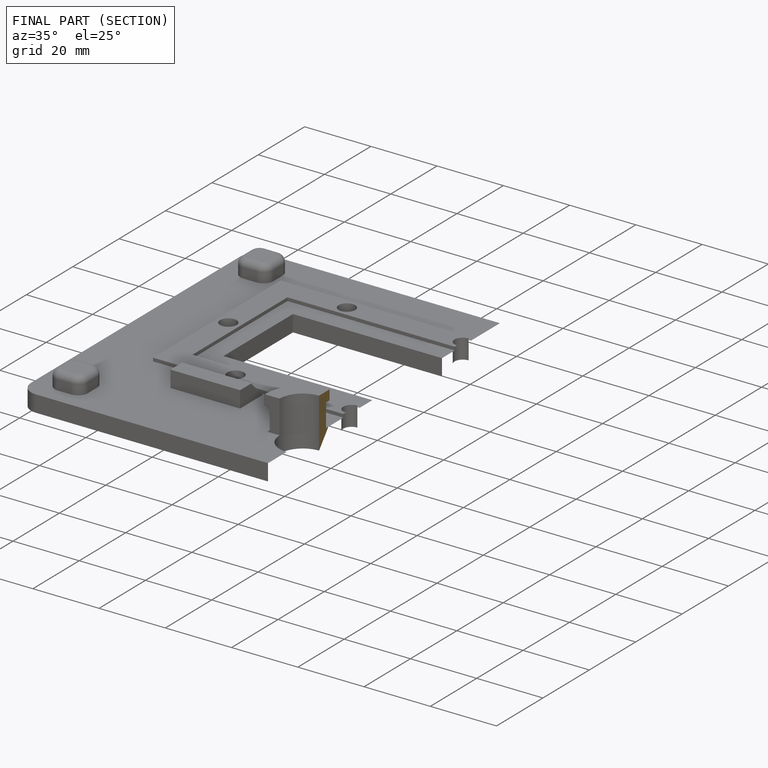
[diagram: finished part — half-section view (interior)]
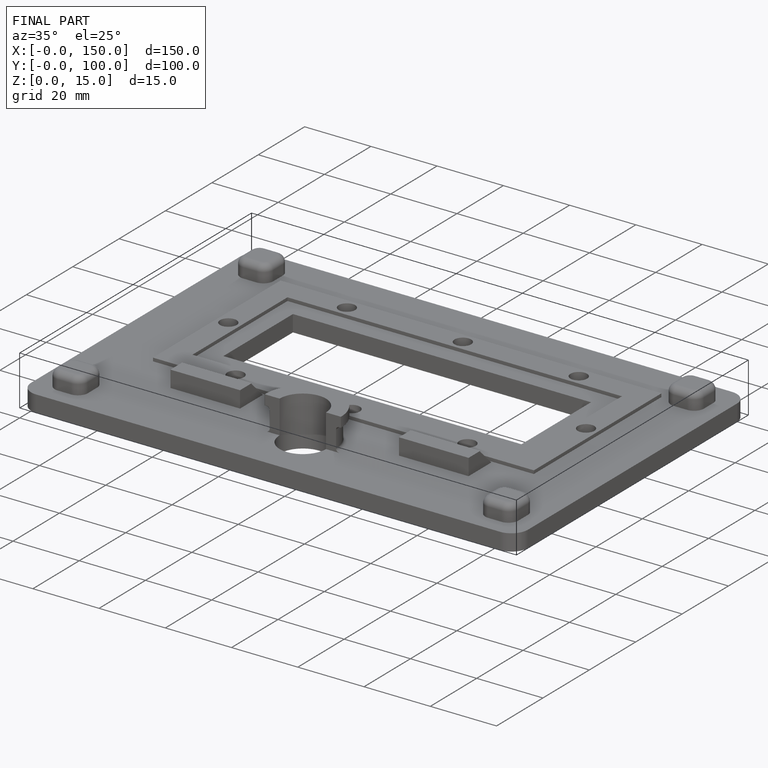
[diagram: finished part — iso view with bounding-box wireframe]
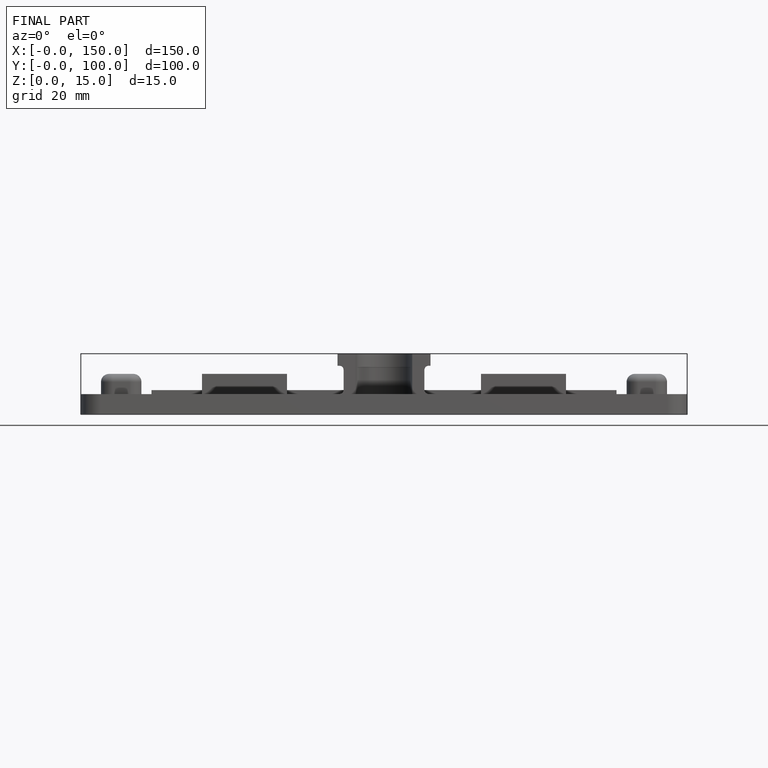
[diagram: finished part — front view with bounding-box wireframe]
